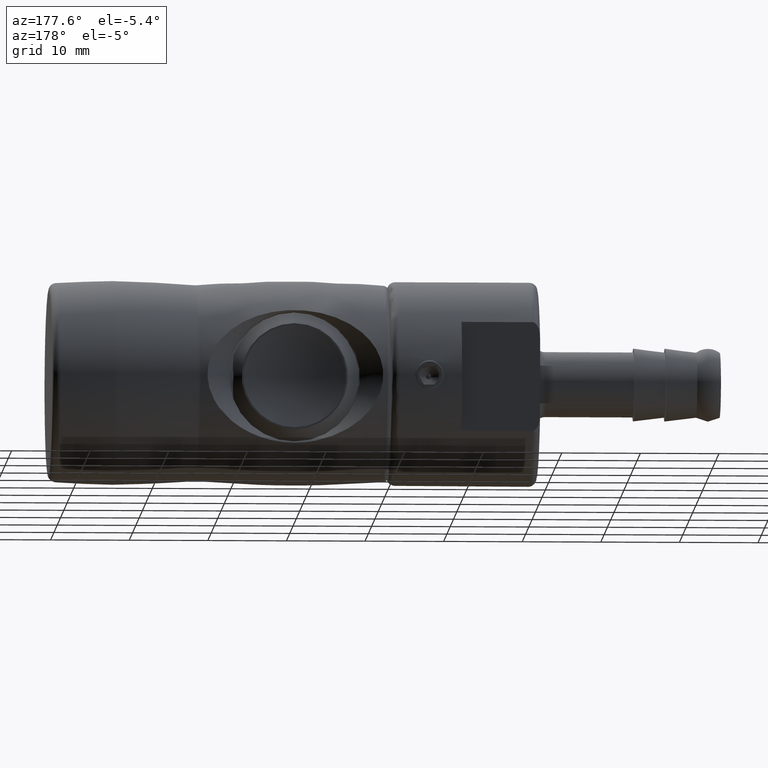
[diagram: clean part render]
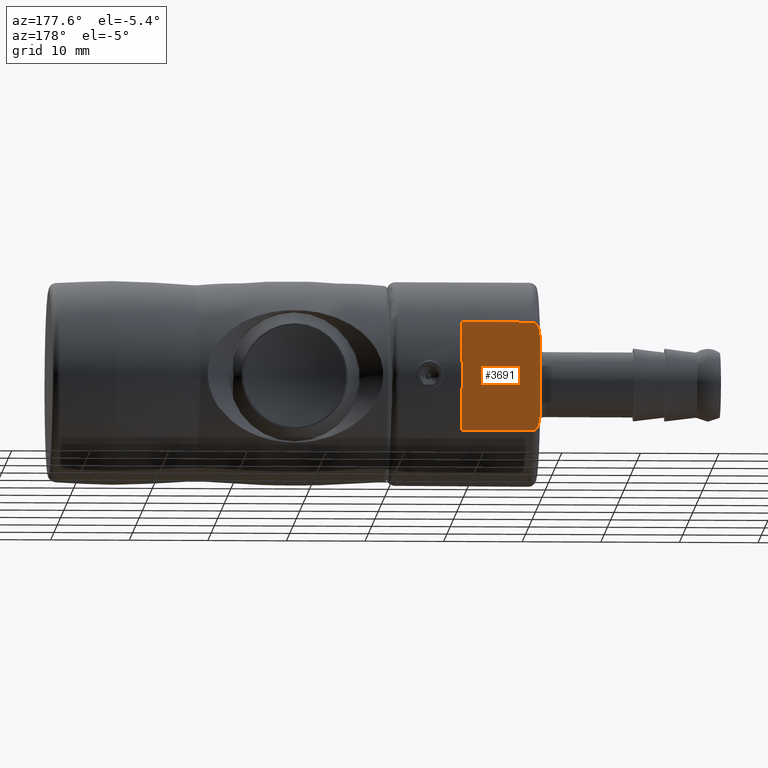
[diagram: same view with one face highlighted and labeled with its STEP entity id]
A machine part, auxiliary view. The second image highlights one B-rep face of the part: STEP entity #3691.
In plain terms, the highlighted planar face has unit normal (0, -1, 0).
Its self-contained STEP definition (entity closure, byte-faithful):
#148=PLANE('',#4226);
#337=B_SPLINE_CURVE_WITH_KNOTS('',3,(#14443,#14444,#14445,#14446,#14447,
#14448,#14449,#14450,#14451,#14452,#14453,#14454),.UNSPECIFIED.,.F.,.F.,
(4,2,2,2,2,4),(-0.945736698037888,-0.838067179971467,-0.774582595755285,
-0.733608869812689,-0.718470350500376,-0.704723276820313),.UNSPECIFIED.);
#338=B_SPLINE_CURVE_WITH_KNOTS('',3,(#14593,#14594,#14595,#14596,#14597,
#14598,#14599,#14600,#14601,#14602,#14603,#14604),.UNSPECIFIED.,.F.,.F.,
(4,2,2,2,2,4),(-0.704723276820313,-0.690976203140249,-0.675837683827933,
-0.634863957885331,-0.57137937366914,-0.463709855602702),.UNSPECIFIED.);
#462=LINE('',#14457,#601);
#463=LINE('',#14461,#602);
#475=LINE('',#14624,#614);
#478=LINE('',#14630,#617);
#601=VECTOR('',#5171,1000.);
#602=VECTOR('',#5174,1000.);
#614=VECTOR('',#5310,1000.);
#617=VECTOR('',#5319,1000.);
#941=FACE_OUTER_BOUND('',#1190,.T.);
#1190=EDGE_LOOP('',(#3451,#3452,#3453,#3454,#3455,#3456));
#1819=VERTEX_POINT('',#14425);
#1822=VERTEX_POINT('',#14441);
#1823=VERTEX_POINT('',#14456);
#1824=VERTEX_POINT('',#14458);
#1825=VERTEX_POINT('',#14460);
#1862=VERTEX_POINT('',#14592);
#2331=EDGE_CURVE('',#1822,#1819,#337,.T.);
#2332=EDGE_CURVE('',#1819,#1823,#462,.T.);
#2334=EDGE_CURVE('',#1824,#1825,#463,.T.);
#2388=EDGE_CURVE('',#1825,#1862,#338,.T.);
#2391=EDGE_CURVE('',#1862,#1822,#475,.T.);
#2394=EDGE_CURVE('',#1824,#1823,#478,.T.);
#3451=ORIENTED_EDGE('',*,*,#2394,.T.);
#3452=ORIENTED_EDGE('',*,*,#2332,.F.);
#3453=ORIENTED_EDGE('',*,*,#2331,.F.);
#3454=ORIENTED_EDGE('',*,*,#2391,.F.);
#3455=ORIENTED_EDGE('',*,*,#2388,.F.);
#3456=ORIENTED_EDGE('',*,*,#2334,.F.);
#3691=ADVANCED_FACE('',(#941),#148,.F.);
#4226=AXIS2_PLACEMENT_3D('',#14631,#5320,#5321);
#5171=DIRECTION('',(1.,2.5879858961019E-18,3.851206953318E-18));
#5174=DIRECTION('',(-1.,-2.5879858961019E-18,-3.851206953318E-18));
#5310=DIRECTION('',(3.851206953318E-18,-1.11022302462516E-16,-1.));
#5319=DIRECTION('',(3.851206953318E-18,-1.11022302462516E-16,-1.));
#5320=DIRECTION('center_axis',(2.5879858961019E-18,-1.,1.11022302462516E-16));
#5321=DIRECTION('ref_axis',(3.851206953318E-18,-1.11022302462516E-16,-1.));
#14425=CARTESIAN_POINT('',(-8.29999999999338,11.,-6.92820323027491));
#14441=CARTESIAN_POINT('',(-9.2999999999932,11.,-4.79583152331164));
#14443=CARTESIAN_POINT('Ctrl Pts',(-9.2999999999932,11.,-4.79583152331191));
#14444=CARTESIAN_POINT('Ctrl Pts',(-9.29999999999321,11.,-5.15472991686664));
#14445=CARTESIAN_POINT('Ctrl Pts',(-9.2620029248139,11.,-5.58372854647784));
#14446=CARTESIAN_POINT('Ctrl Pts',(-9.11250780396266,11.,-6.13430738858567));
#14447=CARTESIAN_POINT('Ctrl Pts',(-9.01916690000445,11.,-6.37046867791541));
#14448=CARTESIAN_POINT('Ctrl Pts',(-8.82300123245369,11.,-6.65814618524146));
#14449=CARTESIAN_POINT('Ctrl Pts',(-8.71061353774838,11.,-6.77743803559481));
#14450=CARTESIAN_POINT('Ctrl Pts',(-8.54872488067011,11.,-6.87112010499221));
#14451=CARTESIAN_POINT('Ctrl Pts',(-8.49313755428451,11.,-6.8951377113844));
#14452=CARTESIAN_POINT('Ctrl Pts',(-8.40028753489036,11.,-6.92062760772406));
#14453=CARTESIAN_POINT('Ctrl Pts',(-8.34582357892673,11.,-6.92820323027491));
#14454=CARTESIAN_POINT('Ctrl Pts',(-8.2999999999932,11.,-6.92820323027491));
#14456=CARTESIAN_POINT('',(0.700000000006802,11.,-6.9282032302748));
#14457=CARTESIAN_POINT('',(-32.599999999992,11.,-6.9282032302748));
#14458=CARTESIAN_POINT('',(0.700000000006802,11.,6.9282032302748));
#14460=CARTESIAN_POINT('',(-8.29999999999302,11.,6.92820323027491));
#14461=CARTESIAN_POINT('',(-32.599999999992,11.,6.9282032302748));
#14592=CARTESIAN_POINT('',(-9.2999999999932,11.,4.79583152331163));
#14593=CARTESIAN_POINT('Ctrl Pts',(-8.2999999999932,11.,6.9282032302749));
#14594=CARTESIAN_POINT('Ctrl Pts',(-8.34582357892673,11.,6.92820323027492));
#14595=CARTESIAN_POINT('Ctrl Pts',(-8.40028753489036,11.,6.92062760772406));
#14596=CARTESIAN_POINT('Ctrl Pts',(-8.49313755428451,11.,6.8951377113844));
#14597=CARTESIAN_POINT('Ctrl Pts',(-8.54872488067011,11.,6.87112010499221));
#14598=CARTESIAN_POINT('Ctrl Pts',(-8.71061353774838,11.,6.77743803559481));
#14599=CARTESIAN_POINT('Ctrl Pts',(-8.82300123245369,11.,6.65814618524146));
#14600=CARTESIAN_POINT('Ctrl Pts',(-9.01916690000445,11.,6.37046867791541));
#14601=CARTESIAN_POINT('Ctrl Pts',(-9.11250780396266,11.,6.13430738858567));
#14602=CARTESIAN_POINT('Ctrl Pts',(-9.2620029248139,11.,5.58372854647784));
#14603=CARTESIAN_POINT('Ctrl Pts',(-9.2999999999932,11.,5.15472991686663));
#14604=CARTESIAN_POINT('Ctrl Pts',(-9.2999999999932,11.,4.79583152331191));
#14624=CARTESIAN_POINT('',(-9.2999999999932,11.,-1.4463071477565E-15));
#14630=CARTESIAN_POINT('',(0.700000000006802,11.,10.));
#14631=CARTESIAN_POINT('Origin',(-9.2999999999932,11.,10.));